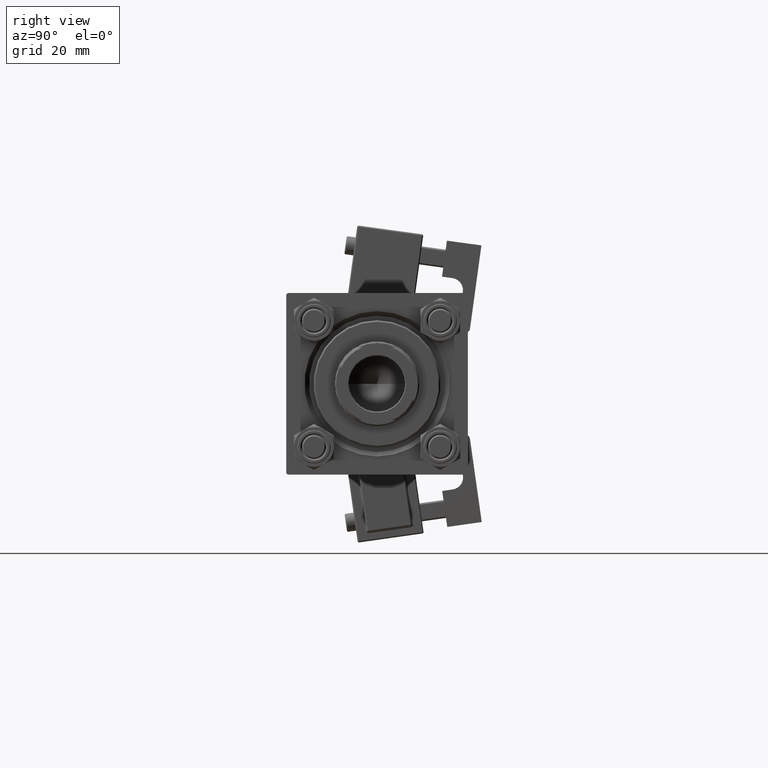
[diagram: clean part render]
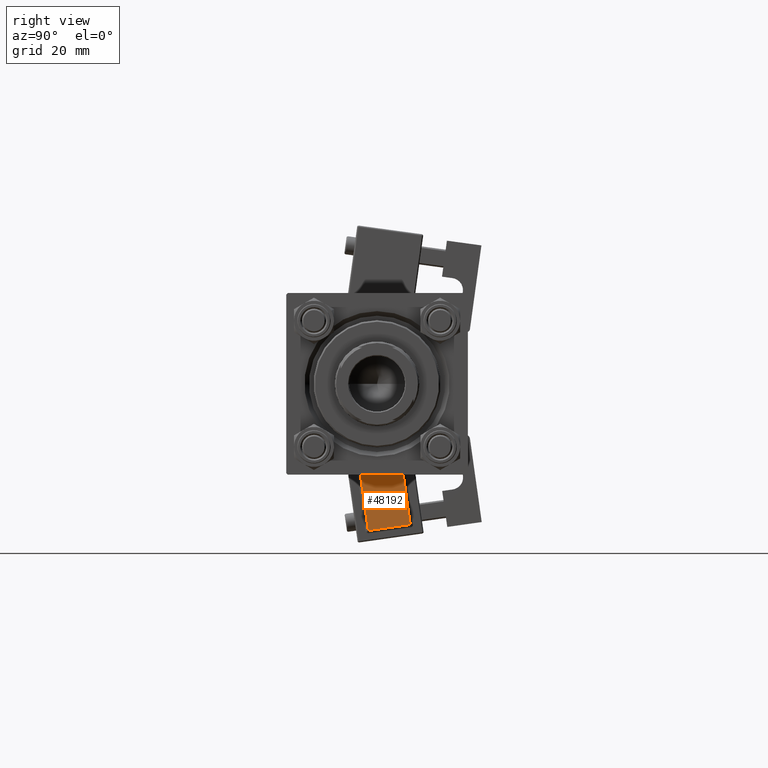
[diagram: same view with one face highlighted and labeled with its STEP entity id]
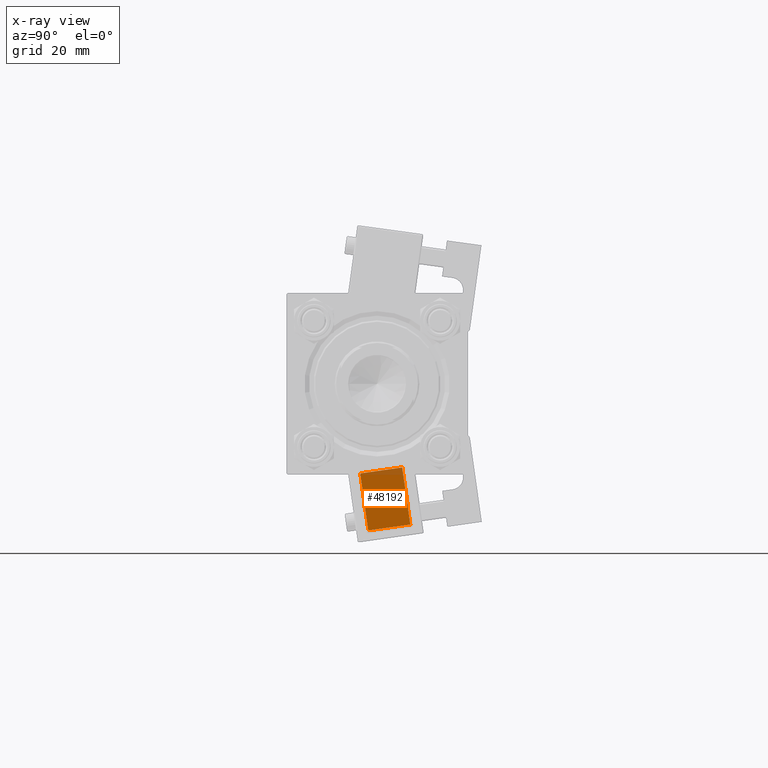
[diagram: x-ray of the same camera — body ghosted, the highlighted face saturated]
A machine part, right view. The second image highlights one B-rep face of the part: STEP entity #48192.
The next image is the same camera in x-ray: the body ghosted, the highlighted face saturated — about 7% of this face is hidden behind the body in this view.
In plain terms, the highlighted planar face has unit normal (1, -0, 0).
Its self-contained STEP definition (entity closure, byte-faithful):
#2856 = VERTEX_POINT ( 'NONE', #33652 ) ;
#4388 = ORIENTED_EDGE ( 'NONE', *, *, #13322, .T. ) ;
#5552 = ORIENTED_EDGE ( 'NONE', *, *, #32396, .T. ) ;
#6688 = VERTEX_POINT ( 'NONE', #36169 ) ;
#7708 = DIRECTION ( 'NONE',  ( -5.473822126268816683E-48, 1.000000000000000000, 1.156482317317871725E-16 ) ) ;
#11018 = EDGE_CURVE ( 'NONE', #6688, #21823, #24475, .T. ) ;
#11521 = CARTESIAN_POINT ( 'NONE',  ( 33.75000000000000000, -31.74999999999999289, 2.500000000000007994 ) ) ;
#11551 = PLANE ( 'NONE',  #36776 ) ;
#12850 = LINE ( 'NONE', #28899, #25901 ) ;
#13095 = LINE ( 'NONE', #16529, #51544 ) ;
#13322 = EDGE_CURVE ( 'NONE', #39049, #6688, #27704, .T. ) ;
#14613 = ORIENTED_EDGE ( 'NONE', *, *, #11018, .T. ) ;
#16085 = VECTOR ( 'NONE', #7708, 1000.000000000000000 ) ;
#16529 = CARTESIAN_POINT ( 'NONE',  ( 33.75000000000000000, -31.74999999999999289, 2.000000000000008438 ) ) ;
#21823 = VERTEX_POINT ( 'NONE', #50004 ) ;
#24475 = LINE ( 'NONE', #31836, #39528 ) ;
#25901 = VECTOR ( 'NONE', #43931, 1000.000000000000000 ) ;
#27704 = LINE ( 'NONE', #43794, #16085 ) ;
#28899 = CARTESIAN_POINT ( 'NONE',  ( 33.74999999999999289, -32.24999999999999289, 21.50000000000000000 ) ) ;
#31045 = DIRECTION ( 'NONE',  ( 1.734723475976807587E-16, 0.000000000000000000, -1.000000000000000000 ) ) ;
#31316 = DIRECTION ( 'NONE',  ( -1.734723475976807587E-16, 0.000000000000000000, 1.000000000000000000 ) ) ;
#31836 = CARTESIAN_POINT ( 'NONE',  ( 33.74999999999999289, -17.74999999999999645, 22.00000000000001066 ) ) ;
#32396 = EDGE_CURVE ( 'NONE', #2856, #39049, #13095, .T. ) ;
#32587 = DIRECTION ( 'NONE',  ( 1.734723475976807587E-16, 0.000000000000000000, -1.000000000000000000 ) ) ;
#33652 = CARTESIAN_POINT ( 'NONE',  ( 33.74999999999999289, -31.74999999999999289, 21.50000000000000000 ) ) ;
#36169 = CARTESIAN_POINT ( 'NONE',  ( 33.75000000000000000, -17.74999999999999645, 2.500000000000009770 ) ) ;
#36776 = AXIS2_PLACEMENT_3D ( 'NONE', #51833, #43162, #31045 ) ;
#37942 = EDGE_LOOP ( 'NONE', ( #43630, #5552, #4388, #14613 ) ) ;
#39049 = VERTEX_POINT ( 'NONE', #11521 ) ;
#39528 = VECTOR ( 'NONE', #31316, 1000.000000000000000 ) ;
#43162 = DIRECTION ( 'NONE',  ( 1.000000000000000000, -2.006177025403371319E-32, 1.734723475976807587E-16 ) ) ;
#43630 = ORIENTED_EDGE ( 'NONE', *, *, #49816, .T. ) ;
#43794 = CARTESIAN_POINT ( 'NONE',  ( 33.75000000000000000, -17.24999999999999289, 2.500000000000009770 ) ) ;
#43931 = DIRECTION ( 'NONE',  ( 6.018531076210116420E-32, -1.000000000000000000, -4.625929269271486900E-16 ) ) ;
#48192 = ADVANCED_FACE ( 'NONE', ( #51056 ), #11551, .T. ) ;
#49816 = EDGE_CURVE ( 'NONE', #21823, #2856, #12850, .T. ) ;
#50004 = CARTESIAN_POINT ( 'NONE',  ( 33.74999999999999289, -17.74999999999999645, 21.50000000000000711 ) ) ;
#51056 = FACE_OUTER_BOUND ( 'NONE', #37942, .T. ) ;
#51544 = VECTOR ( 'NONE', #32587, 1000.000000000000000 ) ;
#51833 = CARTESIAN_POINT ( 'NONE',  ( 33.75000000000000000, -1.755404897227950732E-31, 4.853889726050491084E-15 ) ) ;